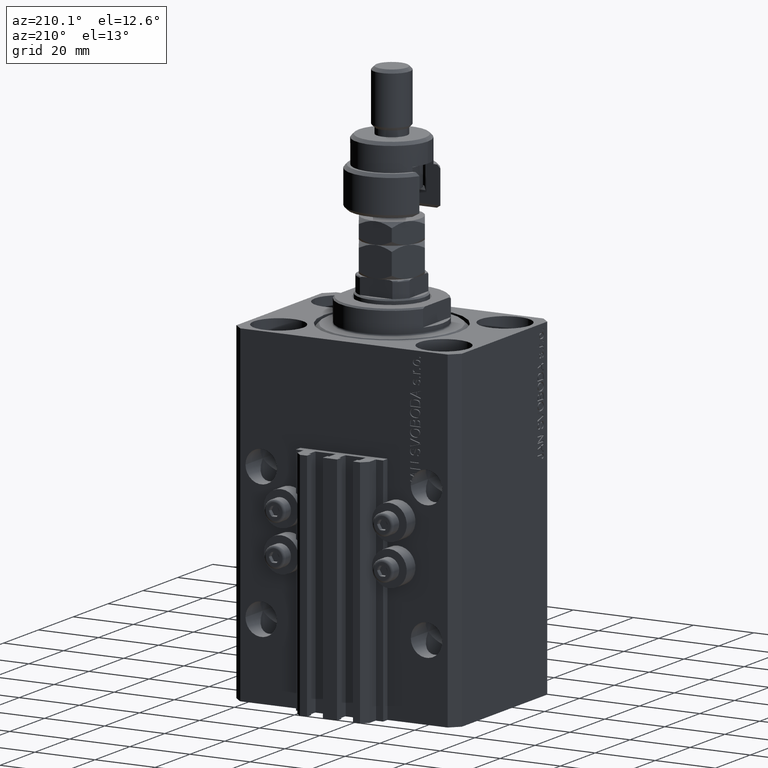
[diagram: clean part render]
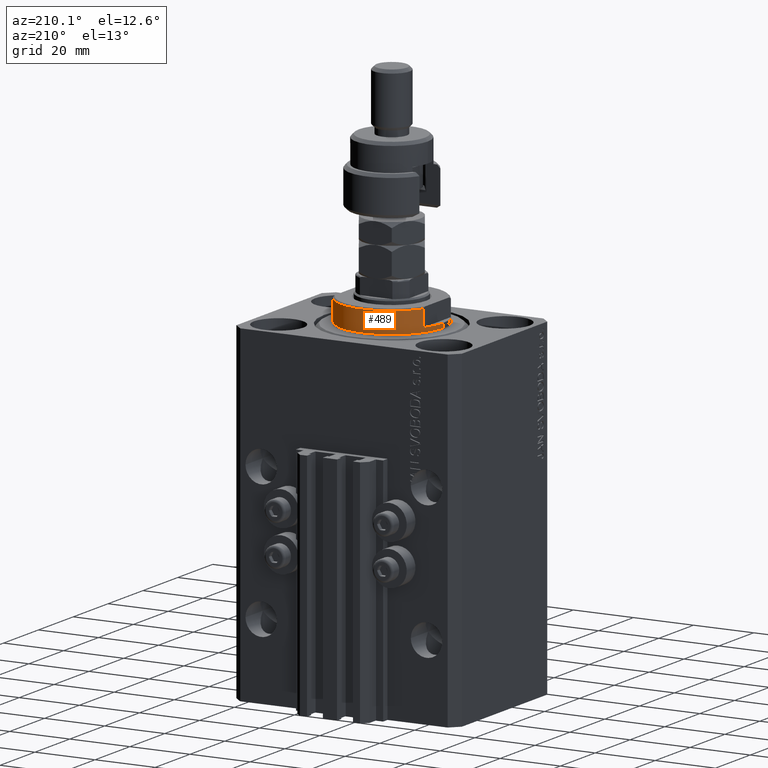
[diagram: same view with one face highlighted and labeled with its STEP entity id]
A machine part, auxiliary view. The second image highlights one B-rep face of the part: STEP entity #489.
In plain terms, the highlighted cylindrical surface (partial cylindrical patch) has radius 17 mm, axis along (0, 0, -1).
Its self-contained STEP definition (entity closure, byte-faithful):
#489 = ADVANCED_FACE ( 'NONE', ( #5948 ), #16888, .T. ) ;
#701 = EDGE_CURVE ( 'NONE', #24975, #29182, #30323, .T. ) ;
#1377 = CARTESIAN_POINT ( 'NONE',  ( 0.000000000000000000, 0.000000000000000000, -8.000000000000000000 ) ) ;
#1844 = EDGE_CURVE ( 'NONE', #29941, #12175, #25202, .T. ) ;
#2411 = VECTOR ( 'NONE', #31974, 1000.000000000000000 ) ;
#2956 = CARTESIAN_POINT ( 'NONE',  ( 17.00000000000000000, 0.000000000000000000, -2.000000000000000000 ) ) ;
#3016 = CARTESIAN_POINT ( 'NONE',  ( 17.00000000000000000, 0.000000000000000000, -0.5000000000000004441 ) ) ;
#5101 = CARTESIAN_POINT ( 'NONE',  ( 15.00000000000000000, 8.000000000000001776, -8.000000000000000000 ) ) ;
#5890 = DIRECTION ( 'NONE',  ( -0.000000000000000000, -0.000000000000000000, 1.000000000000000000 ) ) ;
#5948 = FACE_OUTER_BOUND ( 'NONE', #49259, .T. ) ;
#6167 = VECTOR ( 'NONE', #42008, 1000.000000000000000 ) ;
#8704 = CARTESIAN_POINT ( 'NONE',  ( -17.00000000000000000, 2.081899558550500280E-15, -2.000000000000000000 ) ) ;
#9505 = VERTEX_POINT ( 'NONE', #47377 ) ;
#10251 = DIRECTION ( 'NONE',  ( 0.000000000000000000, 0.000000000000000000, 1.000000000000000000 ) ) ;
#10901 = CIRCLE ( 'NONE', #22362, 17.00000000000000000 ) ;
#11513 = EDGE_CURVE ( 'NONE', #34561, #24975, #20803, .T. ) ;
#12175 = VERTEX_POINT ( 'NONE', #3016 ) ;
#13632 = AXIS2_PLACEMENT_3D ( 'NONE', #26465, #28190, #32249 ) ;
#14005 = ORIENTED_EDGE ( 'NONE', *, *, #21717, .F. ) ;
#14038 = ORIENTED_EDGE ( 'NONE', *, *, #14898, .F. ) ;
#14898 = EDGE_CURVE ( 'NONE', #9505, #29941, #44434, .T. ) ;
#16562 = CARTESIAN_POINT ( 'NONE',  ( -14.99999999999999645, 8.000000000000003553, -2.000000000000000000 ) ) ;
#16888 = CYLINDRICAL_SURFACE ( 'NONE', #36987, 17.00000000000000000 ) ;
#16926 = VERTEX_POINT ( 'NONE', #8704 ) ;
#17814 = CARTESIAN_POINT ( 'NONE',  ( 0.000000000000000000, 0.000000000000000000, -0.5000000000000004441 ) ) ;
#19353 = EDGE_CURVE ( 'NONE', #16926, #25633, #42246, .T. ) ;
#20803 = CIRCLE ( 'NONE', #47520, 17.00000000000000000 ) ;
#21717 = EDGE_CURVE ( 'NONE', #16926, #29182, #30876, .T. ) ;
#22362 = AXIS2_PLACEMENT_3D ( 'NONE', #17814, #48759, #29465 ) ;
#24123 = ORIENTED_EDGE ( 'NONE', *, *, #11513, .T. ) ;
#24975 = VERTEX_POINT ( 'NONE', #47328 ) ;
#25202 = LINE ( 'NONE', #40690, #43536 ) ;
#25633 = VERTEX_POINT ( 'NONE', #42130 ) ;
#25743 = DIRECTION ( 'NONE',  ( -1.000000000000000000, 0.000000000000000000, 0.000000000000000000 ) ) ;
#26465 = CARTESIAN_POINT ( 'NONE',  ( 0.000000000000000000, 0.000000000000000000, -2.000000000000000000 ) ) ;
#27005 = CARTESIAN_POINT ( 'NONE',  ( -17.00000000000000000, 2.081899558550500280E-15, -8.000000000000000000 ) ) ;
#27489 = DIRECTION ( 'NONE',  ( -0.000000000000000000, -0.000000000000000000, 1.000000000000000000 ) ) ;
#28190 = DIRECTION ( 'NONE',  ( 0.000000000000000000, 0.000000000000000000, -1.000000000000000000 ) ) ;
#28403 = EDGE_CURVE ( 'NONE', #34561, #9505, #36341, .T. ) ;
#29060 = DIRECTION ( 'NONE',  ( 1.000000000000000000, 0.000000000000000000, 0.000000000000000000 ) ) ;
#29182 = VERTEX_POINT ( 'NONE', #16562 ) ;
#29375 = VECTOR ( 'NONE', #27489, 1000.000000000000000 ) ;
#29465 = DIRECTION ( 'NONE',  ( 1.000000000000000000, 0.000000000000000000, 0.000000000000000000 ) ) ;
#29941 = VERTEX_POINT ( 'NONE', #2956 ) ;
#30323 = LINE ( 'NONE', #45809, #6167 ) ;
#30876 = CIRCLE ( 'NONE', #47890, 17.00000000000000000 ) ;
#31974 = DIRECTION ( 'NONE',  ( -0.000000000000000000, -0.000000000000000000, 1.000000000000000000 ) ) ;
#32249 = DIRECTION ( 'NONE',  ( -1.000000000000000000, 0.000000000000000000, 0.000000000000000000 ) ) ;
#34561 = VERTEX_POINT ( 'NONE', #34706 ) ;
#34706 = CARTESIAN_POINT ( 'NONE',  ( 15.00000000000000000, 8.000000000000001776, -7.500000000000007105 ) ) ;
#35035 = EDGE_CURVE ( 'NONE', #25633, #12175, #10901, .T. ) ;
#36123 = DIRECTION ( 'NONE',  ( -1.000000000000000000, 0.000000000000000000, 0.000000000000000000 ) ) ;
#36341 = LINE ( 'NONE', #5101, #29375 ) ;
#36362 = ORIENTED_EDGE ( 'NONE', *, *, #19353, .T. ) ;
#36987 = AXIS2_PLACEMENT_3D ( 'NONE', #1377, #48857, #29060 ) ;
#39192 = CARTESIAN_POINT ( 'NONE',  ( 0.000000000000000000, 0.000000000000000000, -2.000000000000000000 ) ) ;
#40690 = CARTESIAN_POINT ( 'NONE',  ( 17.00000000000000000, 0.000000000000000000, -8.000000000000000000 ) ) ;
#42008 = DIRECTION ( 'NONE',  ( -0.000000000000000000, -0.000000000000000000, 1.000000000000000000 ) ) ;
#42130 = CARTESIAN_POINT ( 'NONE',  ( -17.00000000000000000, 2.081899558550500280E-15, -0.5000000000000004441 ) ) ;
#42246 = LINE ( 'NONE', #27005, #2411 ) ;
#42640 = ORIENTED_EDGE ( 'NONE', *, *, #701, .T. ) ;
#42750 = ORIENTED_EDGE ( 'NONE', *, *, #1844, .F. ) ;
#43536 = VECTOR ( 'NONE', #5890, 1000.000000000000000 ) ;
#43739 = ORIENTED_EDGE ( 'NONE', *, *, #28403, .F. ) ;
#44434 = CIRCLE ( 'NONE', #13632, 17.00000000000000000 ) ;
#45538 = CARTESIAN_POINT ( 'NONE',  ( 0.000000000000000000, 0.000000000000000000, -7.500000000000007105 ) ) ;
#45809 = CARTESIAN_POINT ( 'NONE',  ( -15.00000000000000000, 8.000000000000001776, -8.000000000000000000 ) ) ;
#47061 = DIRECTION ( 'NONE',  ( 0.000000000000000000, 0.000000000000000000, -1.000000000000000000 ) ) ;
#47328 = CARTESIAN_POINT ( 'NONE',  ( -15.00000000000000000, 8.000000000000001776, -7.500000000000007105 ) ) ;
#47377 = CARTESIAN_POINT ( 'NONE',  ( 14.99999999999999645, 8.000000000000003553, -2.000000000000000000 ) ) ;
#47520 = AXIS2_PLACEMENT_3D ( 'NONE', #45538, #10251, #25743 ) ;
#47890 = AXIS2_PLACEMENT_3D ( 'NONE', #39192, #47061, #36123 ) ;
#48595 = ORIENTED_EDGE ( 'NONE', *, *, #35035, .T. ) ;
#48759 = DIRECTION ( 'NONE',  ( -0.000000000000000000, -0.000000000000000000, -1.000000000000000000 ) ) ;
#48857 = DIRECTION ( 'NONE',  ( -0.000000000000000000, -0.000000000000000000, 1.000000000000000000 ) ) ;
#49259 = EDGE_LOOP ( 'NONE', ( #14005, #36362, #48595, #42750, #14038, #43739, #24123, #42640 ) ) ;